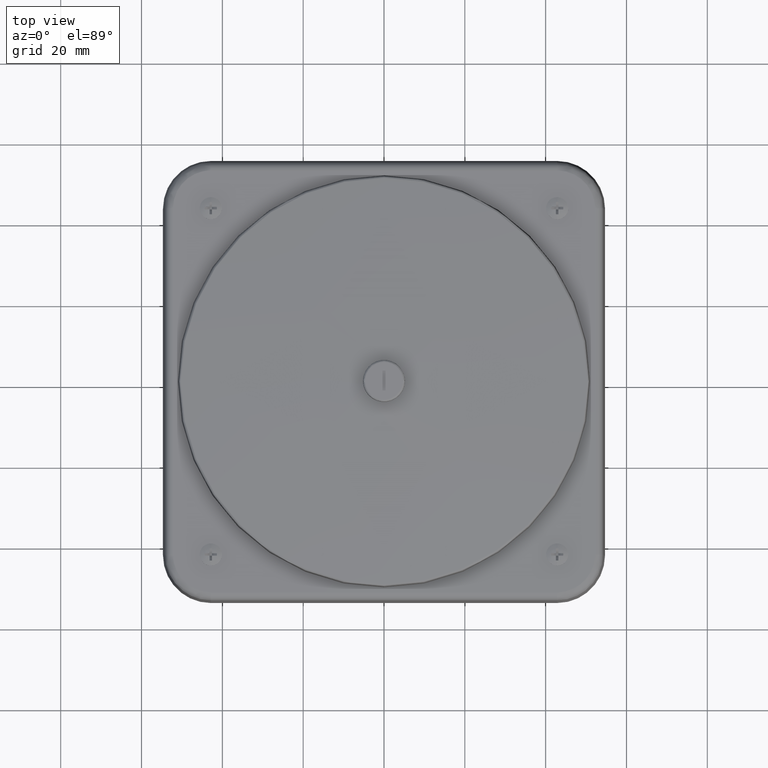
[diagram: clean part render]
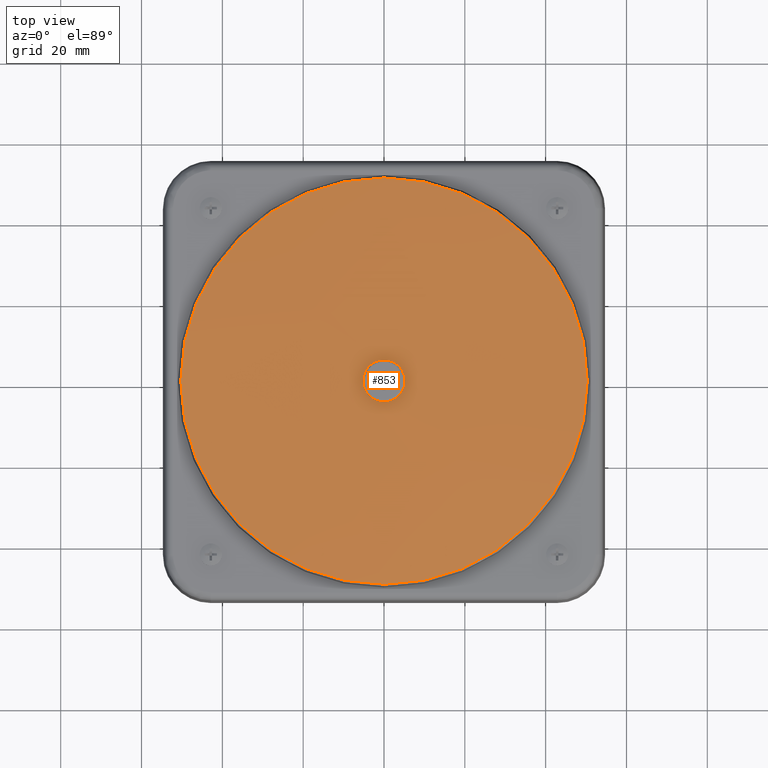
[diagram: same view with one face highlighted and labeled with its STEP entity id]
A machine part, top view. The second image highlights one B-rep face of the part: STEP entity #853.
In plain terms, the highlighted face is a freeform B-spline surface patch.
Its self-contained STEP definition (entity closure, byte-faithful):
#323 = DIRECTION ( 'NONE',  ( 0.000000000000000000, 0.000000000000000000, -1.000000000000000000 ) ) ;
#435 = DIRECTION ( 'NONE',  ( -1.000000000000000000, 0.000000000000000000, 0.000000000000000000 ) ) ;
#853 = ADVANCED_FACE ( 'NONE', ( #15469, #18546 ), #2254, .T. ) ;
#1934 = CARTESIAN_POINT ( 'NONE',  ( -2.797412345512204431E-15, 2.800144193505869651E-15, 2.687014916833901701 ) ) ;
#2098 = CIRCLE ( 'NONE', #4205, 1.979414863061023544 ) ;
#2254 =( BOUNDED_SURFACE ( )  B_SPLINE_SURFACE ( 3, 3, ( 
 ( #5534, #12206, #10565, #19095 ),
 ( #7846, #10783, #14281, #9251 ),
 ( #21206, #18987, #4130, #4463 ),
 ( #21105, #20998, #7507, #5991 ) ),
 .UNSPECIFIED., .F., .F., .F. ) 
 B_SPLINE_SURFACE_WITH_KNOTS ( ( 4, 4 ),
 ( 4, 4 ),
 ( 0.000000000000000000, 1.000000000000000000 ),
 ( 0.000000000000000000, 1.000000000000000000 ),
 .UNSPECIFIED. ) 
 GEOMETRIC_REPRESENTATION_ITEM ( )  RATIONAL_B_SPLINE_SURFACE ( (
 ( 1.000000000000000000, 0.9966105824768435317, 0.9966105824768435317, 1.000000000000000000),
 ( 0.9966276564325262655, 0.9932496691897515495, 0.9932496691897515495, 0.9966276564325262655),
 ( 0.9966276564325262655, 0.9932496691897515495, 0.9932496691897515495, 0.9966276564325262655),
 ( 1.000000000000000000, 0.9966105824768435317, 0.9966105824768435317, 1.000000000000000000) ) ) 
 REPRESENTATION_ITEM ( '' )  SURFACE ( )  );
#2378 = CARTESIAN_POINT ( 'NONE',  ( 1.979414863061020879, 1.293615853963759587E-09, 2.589870179541606365 ) ) ;
#3121 = DIRECTION ( 'NONE',  ( 1.000000000000000000, 6.506258309890710155E-10, 0.000000000000000000 ) ) ;
#3473 = EDGE_LOOP ( 'NONE', ( #14686, #5137 ) ) ;
#3538 = CIRCLE ( 'NONE', #15746, 1.979414863061023544 ) ;
#3549 = CARTESIAN_POINT ( 'NONE',  ( -2.731847993664263613E-15, 3.005032793030688554E-15, 2.589870179541606365 ) ) ;
#4130 = CARTESIAN_POINT ( 'NONE',  ( 0.6705507630844750322, -0.6779775341956167933, 2.755908098342672030 ) ) ;
#4205 = AXIS2_PLACEMENT_3D ( 'NONE', #3549, #8255, #3121 ) ;
#4463 = CARTESIAN_POINT ( 'NONE',  ( 2.013344028408547981, -0.6779775333219607569, 2.620273122263015342 ) ) ;
#4942 = DIRECTION ( 'NONE',  ( 1.000000000000000000, 6.506258309890710155E-10, 0.000000000000000000 ) ) ;
#5137 = ORIENTED_EDGE ( 'NONE', *, *, #8950, .F. ) ;
#5534 = CARTESIAN_POINT ( 'NONE',  ( -2.008266815814212514, 2.003160133567819745, 2.485896872010883385 ) ) ;
#5991 = CARTESIAN_POINT ( 'NONE',  ( 1.999735714618182225, -2.015086490123380702, 2.485550104598589716 ) ) ;
#6435 = EDGE_CURVE ( 'NONE', #13171, #11674, #7602, .T. ) ;
#7112 = VERTEX_POINT ( 'NONE', #2378 ) ;
#7507 = CARTESIAN_POINT ( 'NONE',  ( 0.6660184705922377324, -2.015086490991131907, 2.620268315630744027 ) ) ;
#7579 = EDGE_LOOP ( 'NONE', ( #15510, #17602 ) ) ;
#7602 = CIRCLE ( 'NONE', #13172, 0.2047791481690417192 ) ;
#7846 = CARTESIAN_POINT ( 'NONE',  ( -2.021851477275072195, 0.6659702598564726239, 2.619816768472285951 ) ) ;
#8115 = EDGE_CURVE ( 'NONE', #7112, #10333, #2098, .T. ) ;
#8255 = DIRECTION ( 'NONE',  ( 0.000000000000000000, 0.000000000000000000, -1.000000000000000000 ) ) ;
#8749 = CARTESIAN_POINT ( 'NONE',  ( -2.797412345512204431E-15, 2.800144193505869651E-15, 2.687014916833901701 ) ) ;
#8950 = EDGE_CURVE ( 'NONE', #10333, #7112, #3538, .T. ) ;
#9251 = CARTESIAN_POINT ( 'NONE',  ( 2.013384502911357288, 0.6659702624819013872, 2.620673830586992548 ) ) ;
#9637 = AXIS2_PLACEMENT_3D ( 'NONE', #1934, #20211, #15473 ) ;
#10333 = VERTEX_POINT ( 'NONE', #18617 ) ;
#10565 = CARTESIAN_POINT ( 'NONE',  ( 0.6660587729629012799, 2.003160135307804790, 2.621474539274272875 ) ) ;
#10783 = CARTESIAN_POINT ( 'NONE',  ( -0.6790889555967102309, 0.6659702607301085653, 2.756024874433641525 ) ) ;
#11674 = VERTEX_POINT ( 'NONE', #20602 ) ;
#12206 = CARTESIAN_POINT ( 'NONE',  ( -0.6745262107585495714, 2.003160134435585160, 2.621189806335050942 ) ) ;
#13171 = VERTEX_POINT ( 'NONE', #21076 ) ;
#13172 = AXIS2_PLACEMENT_3D ( 'NONE', #8749, #13767, #435 ) ;
#13767 = DIRECTION ( 'NONE',  ( 0.000000000000000000, 0.000000000000000000, -1.000000000000000000 ) ) ;
#14281 = CARTESIAN_POINT ( 'NONE',  ( 0.6705642426658084965, 0.6659702616082278093, 2.756311533412176829 ) ) ;
#14686 = ORIENTED_EDGE ( 'NONE', *, *, #8115, .F. ) ;
#15469 = FACE_OUTER_BOUND ( 'NONE', #3473, .T. ) ;
#15473 = DIRECTION ( 'NONE',  ( -1.000000000000000000, 0.000000000000000000, 0.000000000000000000 ) ) ;
#15510 = ORIENTED_EDGE ( 'NONE', *, *, #16521, .T. ) ;
#15746 = AXIS2_PLACEMENT_3D ( 'NONE', #18580, #323, #4942 ) ;
#16269 = CIRCLE ( 'NONE', #9637, 0.2047791481690417192 ) ;
#16521 = EDGE_CURVE ( 'NONE', #11674, #13171, #16269, .T. ) ;
#17602 = ORIENTED_EDGE ( 'NONE', *, *, #6435, .T. ) ;
#18546 = FACE_BOUND ( 'NONE', #7579, .T. ) ;
#18580 = CARTESIAN_POINT ( 'NONE',  ( -2.731847993664263613E-15, 3.005032793030688554E-15, 2.589870179541606365 ) ) ;
#18617 = CARTESIAN_POINT ( 'NONE',  ( -1.979414863061026209, -1.293610087389710220E-09, 2.589870179541606365 ) ) ;
#18987 = CARTESIAN_POINT ( 'NONE',  ( -0.6790753028929683577, -0.6779775350737186068, 2.755621445126887892 ) ) ;
#19095 = CARTESIAN_POINT ( 'NONE',  ( 1.999856728644822335, 2.003160136175608397, 2.486748175592108812 ) ) ;
#20211 = DIRECTION ( 'NONE',  ( 0.000000000000000000, 0.000000000000000000, -1.000000000000000000 ) ) ;
#20602 = CARTESIAN_POINT ( 'NONE',  ( -0.2047791481690447724, 2.800144193505869651E-15, 2.687014916833901701 ) ) ;
#20998 = CARTESIAN_POINT ( 'NONE',  ( -0.6744853907721481967, -2.015086491863297802, 2.619983599921467565 ) ) ;
#21076 = CARTESIAN_POINT ( 'NONE',  ( 0.2047791481690391657, 2.825222406339603895E-15, 2.687014916833901701 ) ) ;
#21105 = CARTESIAN_POINT ( 'NONE',  ( -2.008145287642273402, -2.015086492731011703, 2.484698852532004398 ) ) ;
#21206 = CARTESIAN_POINT ( 'NONE',  ( -2.021810830810582882, -0.6779775359473366736, 2.619416077377960228 ) ) ;